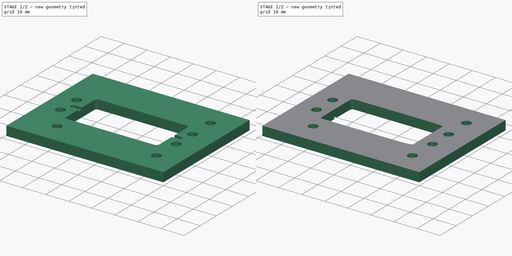
[diagram: build sequence overview — one tinted view per stage of 2, left to right]
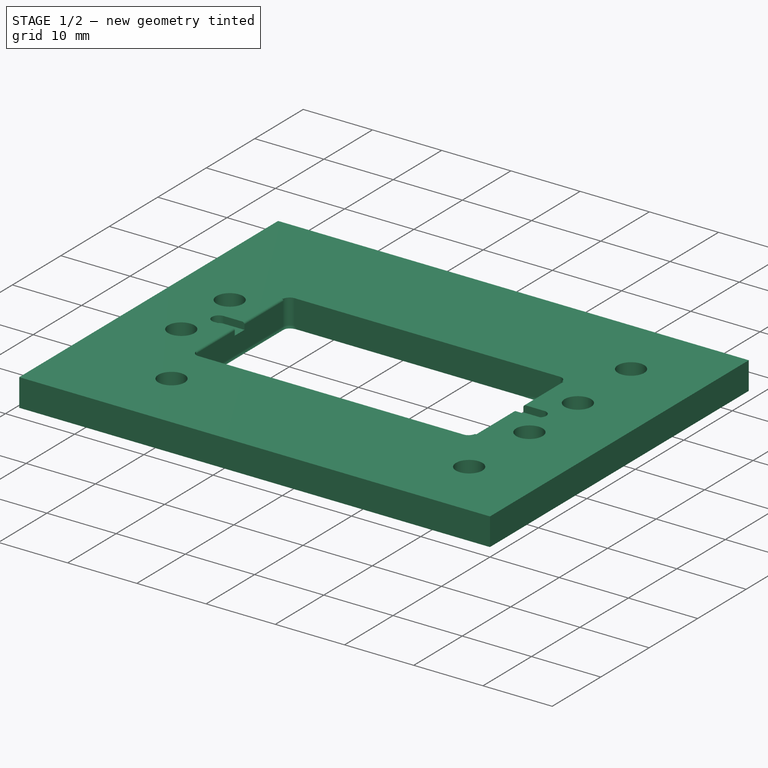
[diagram: stage 1 of 2 — iso view after this stage's code; geometry added in this stage tinted green]
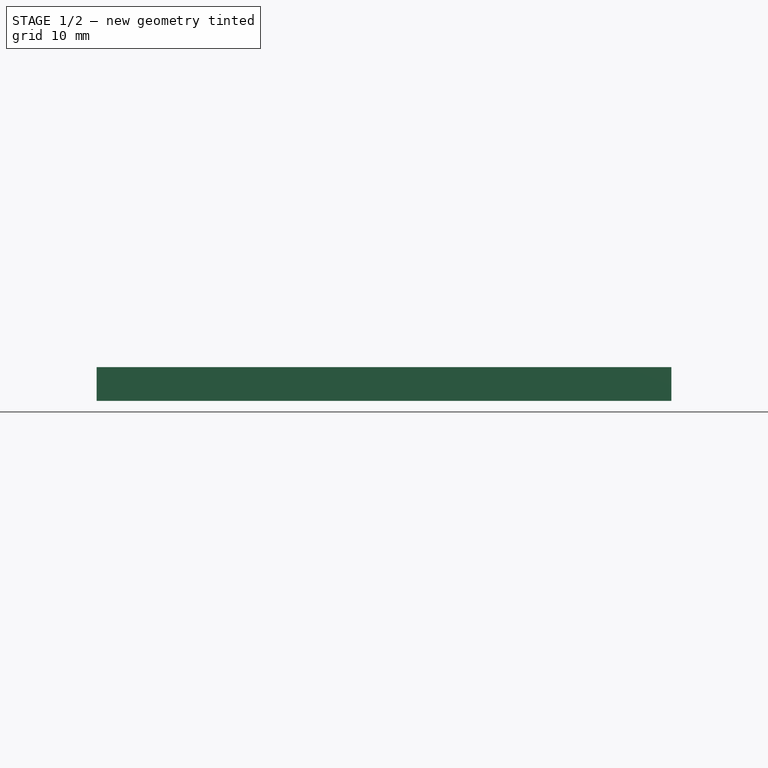
[diagram: stage 1 of 2 — front view after this stage's code; geometry added in this stage tinted green]
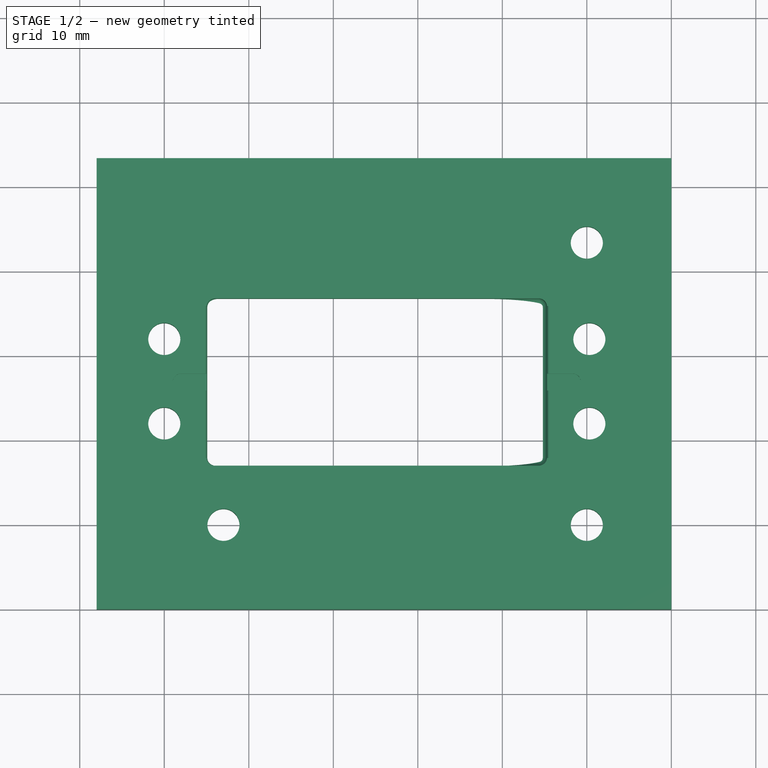
[diagram: stage 1 of 2 — top view after this stage's code; geometry added in this stage tinted green]
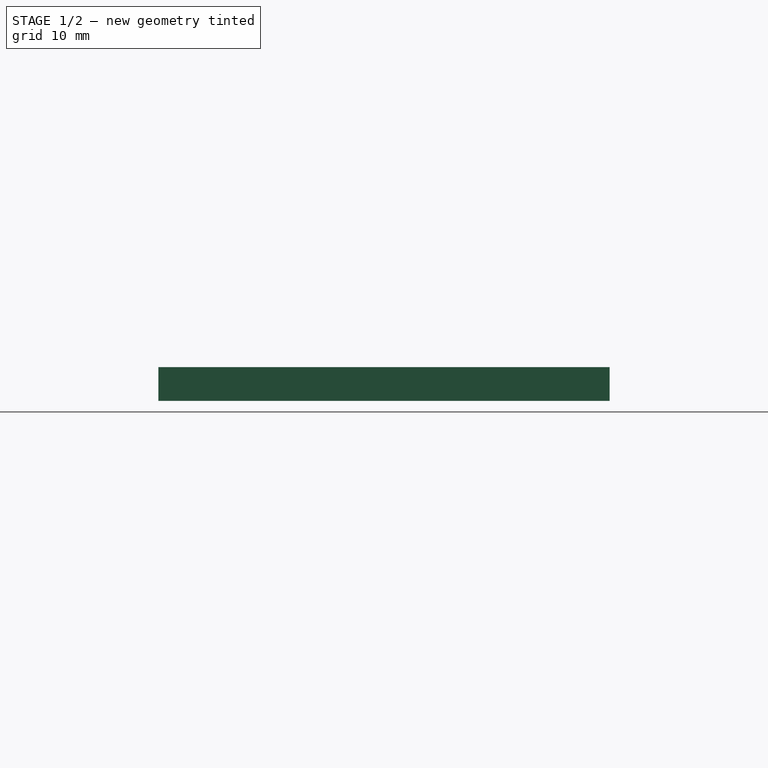
[diagram: stage 1 of 2 — right view after this stage's code; geometry added in this stage tinted green]
FCSTD DOCUMENT  (FreeCAD 0.18.4R)
Label: servo_mkiii-rev
License: All rights reserved
LicenseURL: http://en.wikipedia.org/wiki/All_rights_reserved
objects: Sketcher::SketchObject×1, Part::Feature×1, PartDesign::Pad×1, PartDesign::Body×1, Part::FeaturePython×1, Part::Mirroring×1
note: 7 computed .brp shape members not serialized (recipe doc carries the construction recipe); baked Part::Feature solids carry a one-line shape summary decoded from their .brp

FEATURE [Sketcher::SketchObject] Sketch
  MapMode = 5
  Support = -> [XY_Plane]
  sketch-geometry (24):
    g0: LineSegment StartX=0 StartY=0 StartZ=0 EndX=0 EndY=53.4 EndZ=0
    g1: LineSegment StartX=0 StartY=0 StartZ=0 EndX=-68 EndY=0 EndZ=0
    g2: LineSegment StartX=-68 StartY=0 StartZ=0 EndX=-68 EndY=53.4 EndZ=0
    g3: LineSegment StartX=-68 StartY=53.4 StartZ=0 EndX=0 EndY=53.4 EndZ=0
    g4: LineSegment [constr] StartX=-53 StartY=0 StartZ=0 EndX=-53 EndY=10 EndZ=0
    g5: Circle CenterX=-53 CenterY=10 CenterZ=0 NormalX=0 NormalY=0 NormalZ=1 AngleXU=0 Radius=1.9
    g6: LineSegment [constr] StartX=-53 StartY=10 StartZ=0 EndX=-10 EndY=10 EndZ=0
    g7: Circle CenterX=-10 CenterY=10 CenterZ=0 NormalX=0 NormalY=0 NormalZ=1 AngleXU=0 Radius=1.9
    g8: LineSegment [constr] StartX=-10 StartY=10 StartZ=0 EndX=-10 EndY=43.4 EndZ=0
    g9: Circle CenterX=-10 CenterY=43.4 CenterZ=0 NormalX=0 NormalY=0 NormalZ=1 AngleXU=0 Radius=1.9
    g10: LineSegment [constr] StartX=-53 StartY=10 StartZ=0 EndX=-44.7 EndY=26.7 EndZ=0
    g11: Circle CenterX=-44.7 CenterY=26.7 CenterZ=0 NormalX=0 NormalY=0 NormalZ=1 AngleXU=0 Radius=5
    g12: LineSegment [constr] StartX=-10 StartY=43.4 StartZ=0 EndX=0 EndY=43.4 EndZ=0
    g13: Circle CenterX=-60 CenterY=32 CenterZ=0 NormalX=0 NormalY=0 NormalZ=1 AngleXU=0 Radius=1.9
    g14: Circle CenterX=-60 CenterY=22 CenterZ=0 NormalX=0 NormalY=0 NormalZ=1 AngleXU=0 Radius=1.9
    g15: LineSegment [constr] StartX=-60 StartY=22 StartZ=0 EndX=-60 EndY=32 EndZ=0
    g16: LineSegment [constr] StartX=-60 StartY=22 StartZ=0 EndX=-60 EndY=0 EndZ=0
    g17: LineSegment [constr] StartX=-60 StartY=22 StartZ=0 EndX=-68 EndY=22 EndZ=0
    g18: LineSegment [constr] StartX=-60 StartY=22 StartZ=0 EndX=-10 EndY=22 EndZ=0
    g19: Circle CenterX=-9.7 CenterY=22 CenterZ=0 NormalX=0 NormalY=0 NormalZ=1 AngleXU=0 Radius=1.9
    g20: LineSegment [constr] StartX=-9.7 StartY=22 StartZ=0 EndX=-9.7 EndY=32 EndZ=0
    g21: Circle CenterX=-9.7 CenterY=32 CenterZ=0 NormalX=0 NormalY=0 NormalZ=1 AngleXU=0 Radius=1.9
    g22: LineSegment [constr] StartX=-9.7 StartY=22 StartZ=0 EndX=-9.7 EndY=0 EndZ=0
    g23: LineSegment [constr] StartX=-9.7 StartY=22 StartZ=0 EndX=0 EndY=22 EndZ=0
  constraints (66):
    c: Coincident(g0,g-1)
    c: PointOnObject(g0,g-2)
    c: DistanceY(g0,g0) = 53.4
    c: Coincident(g1,g0)
    c: PointOnObject(g1,g-1)
    c: DistanceX(g1,g1) = 68
    c: Coincident(g2,g1)
    c: Equal(g2,g0)
    c: Coincident(g3,g2)
    c: Coincident(g3,g0)
    c: Equal(g3,g1)
    c: PointOnObject(g4,g1)
    c: Vertical(g4)
    c: DistanceY(g4,g4) = 10
    c: Coincident(g5,g4)
    c: Radius(g5) = 1.9
    c: Coincident(g6,g5)
    c: Horizontal(g6)
    c: DistanceX(g6,g6) = 43
    c: Coincident(g7,g6)
    c: Radius(g7) = 1.9
    c: Coincident(g8,g7)
    c: Vertical(g8)
    c: DistanceY(g8,g8) = 33.4
    c: Coincident(g9,g8)
    c: Radius(g9) = 1.9
    c: Coincident(g10,g5)
    c: Angle(g6,g10) = 1.10955
    c: Distance(g10) = 18.6489
    c: Coincident(g11,g10)
    c: Radius(g11) = 5
    c: Coincident(g12,g9)
    c: PointOnObject(g12,g0)
    c: Horizontal(g12)
    c: DistanceX(g12,g12) = 10
    c: Radius(g13) = 1.9
    c: Radius(g14) = 1.9
    c: Coincident(g15,g14)
    c: Coincident(g15,g13)
    c: Vertical(g15)
    c: DistanceY(g15,g15) = 10
    c: Coincident(g16,g14)
    c: PointOnObject(g16,g1)
    c: Vertical(g16)
    c: DistanceY(g16,g16) = 22
    c: Coincident(g17,g14)
    c: PointOnObject(g17,g2)
    c: Horizontal(g17)
    c: DistanceX(g17,g17) = 8
    c: Coincident(g18,g14)
    c: PointOnObject(g18,g8)
    c: Horizontal(g18)
    c: Radius(g19) = 1.9
    c: Coincident(g20,g19)
    c: Vertical(g20)
    c: DistanceY(g20,g20) = 10
    c: Coincident(g21,g20)
    c: Radius(g21) = 1.9
    c: Coincident(g22,g19)
    c: PointOnObject(g22,g1)
    c: Vertical(g22)
    c: Equal(g22,g16)
    c: Coincident(g23,g19)
    c: PointOnObject(g23,g0)
    c: Horizontal(g23)
    c: DistanceX(g23,g23) = 9.7
FEATURE [Part::Feature] Part__Feature006  label="Case"
  Placement = pos=(-55,17,8) rot=(0.707107,0.707107,0;3.14159rad)
  shape: bbox 68.3 x 20.02 x 42.1 mm, 433 faces (baked)
FEATURE [PartDesign::Pad] Pad
  Length = 4
  Length2 = 100
  Profile = -> Sketch
  Type = 0
FEATURE [PartDesign::Body] Body
  Group = -> [Sketch,Pad]
  Origin = -> Origin
  Tip = -> Pad
FEATURE [Part::FeaturePython] Cutout  # WARN: FeaturePython — macro-defined, semantics opaque (R4)
  Base = -> Pad
  Tolerance = 0
  Tool = -> Part__Feature006
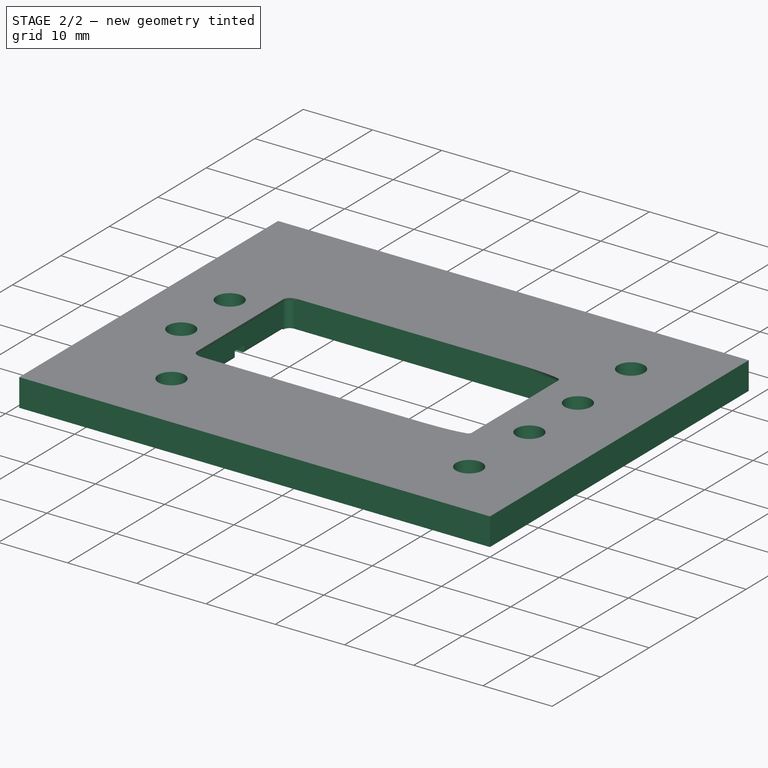
[diagram: stage 2 of 2 — iso view after this stage's code; geometry added in this stage tinted green]
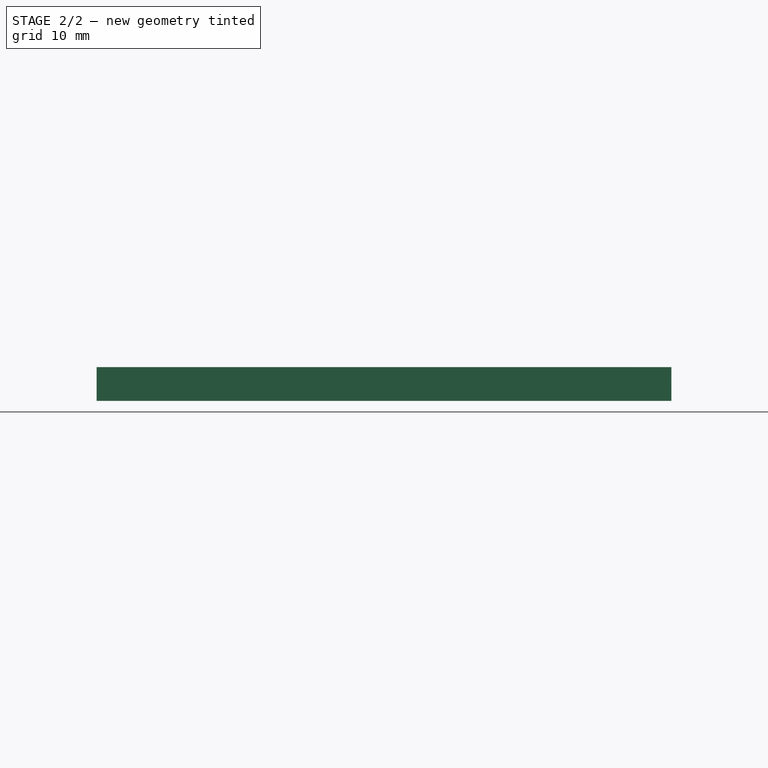
[diagram: stage 2 of 2 — front view after this stage's code; geometry added in this stage tinted green]
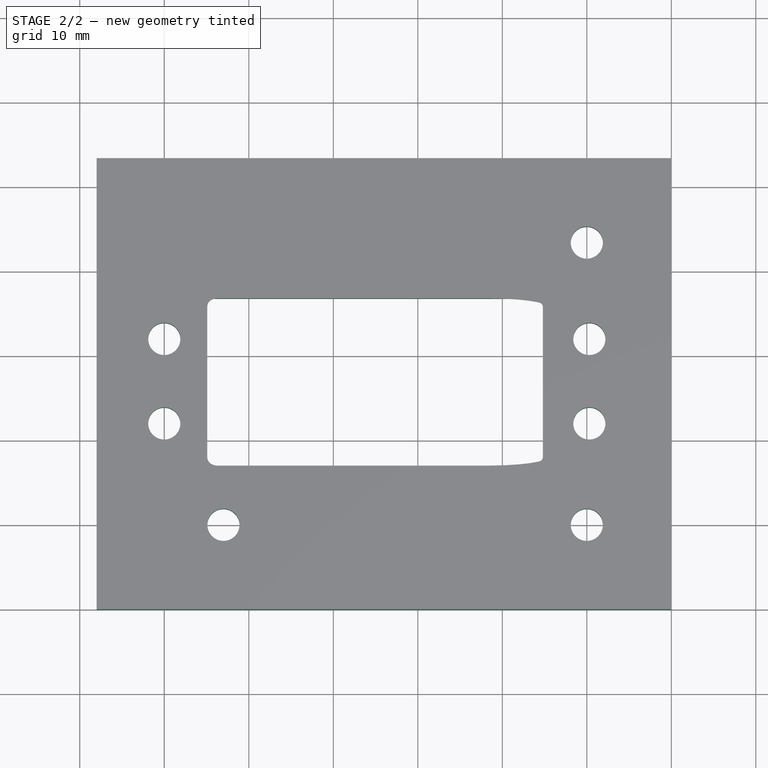
[diagram: stage 2 of 2 — top view after this stage's code; geometry added in this stage tinted green]
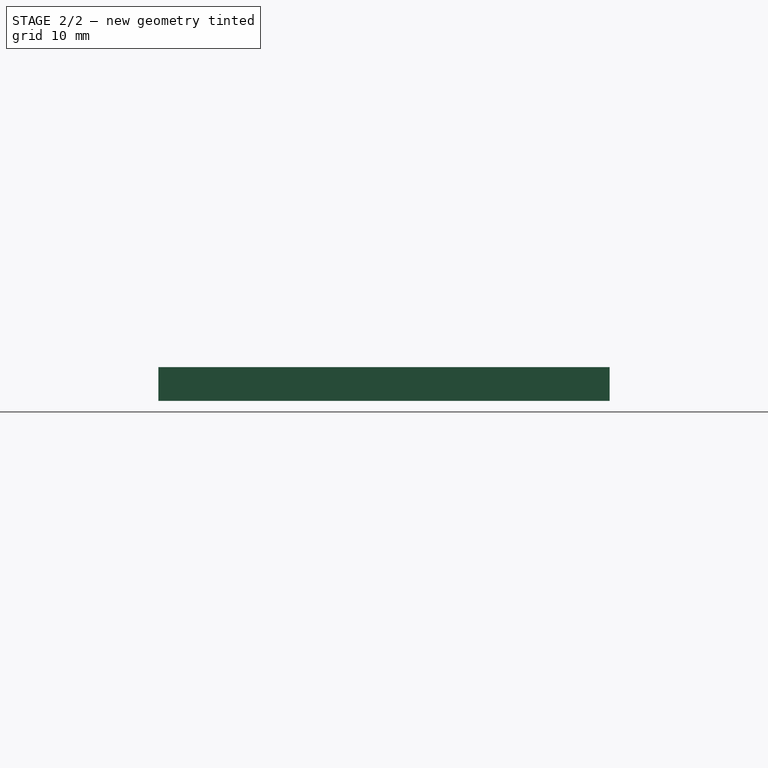
[diagram: stage 2 of 2 — right view after this stage's code; geometry added in this stage tinted green]
FEATURE [Part::Mirroring] Part__Mirroring  label="Cutout (Mirror #1)"
  Base = (0,0,0)
  Normal = (0,0,1)
  Source = -> Cutout
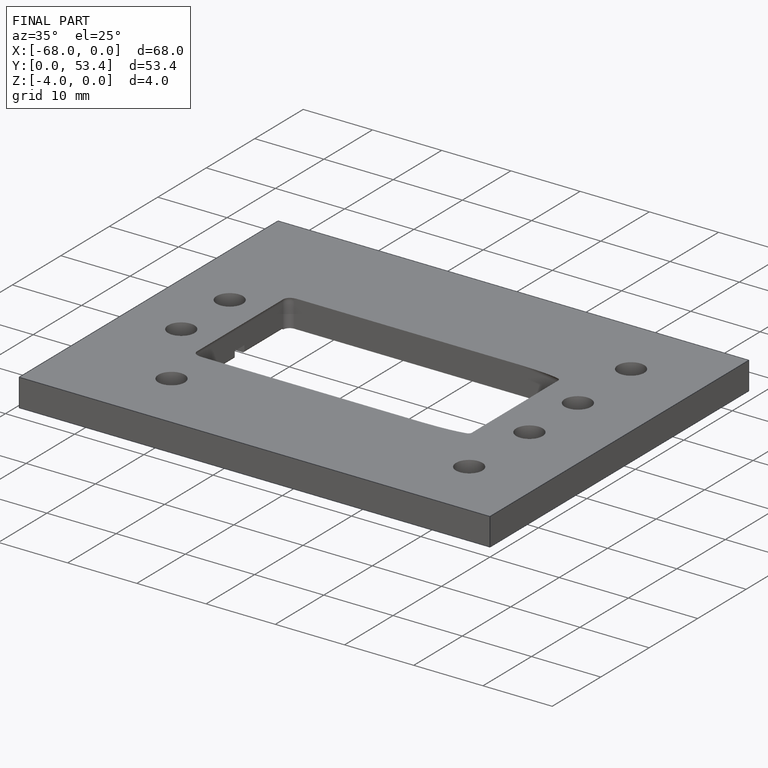
[diagram: finished part — iso view with bounding-box wireframe]
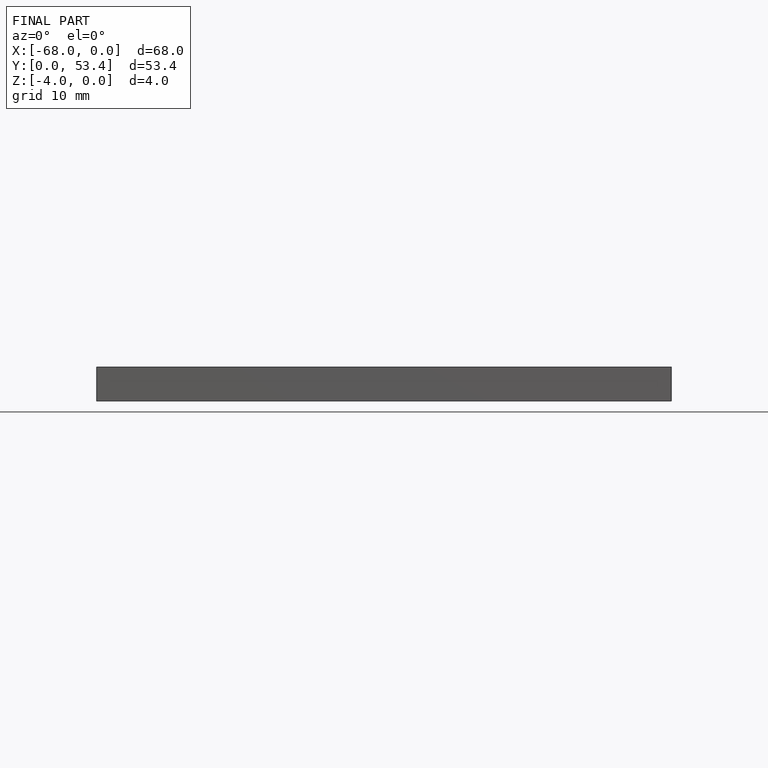
[diagram: finished part — front view with bounding-box wireframe]
